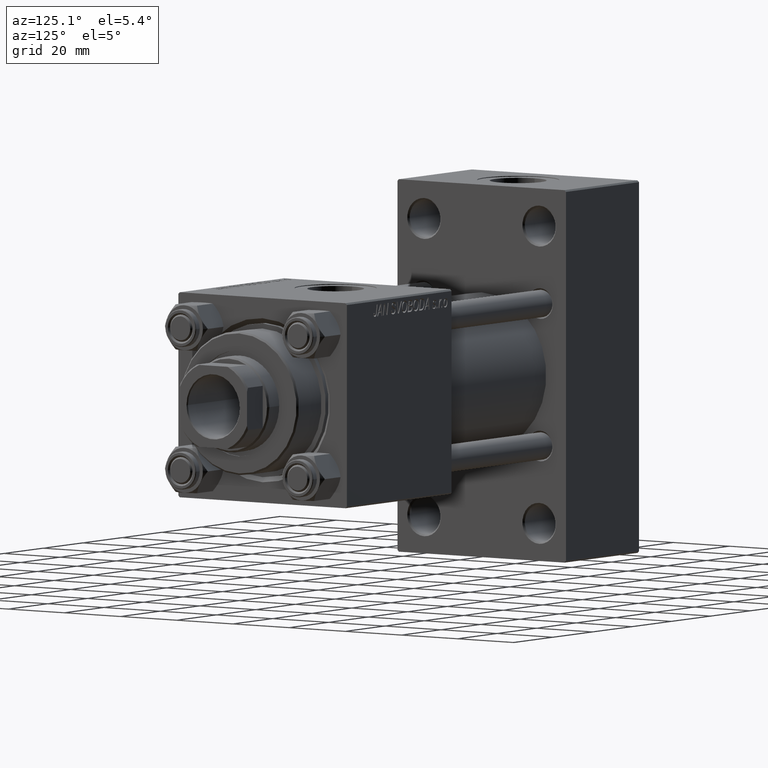
[diagram: clean part render]
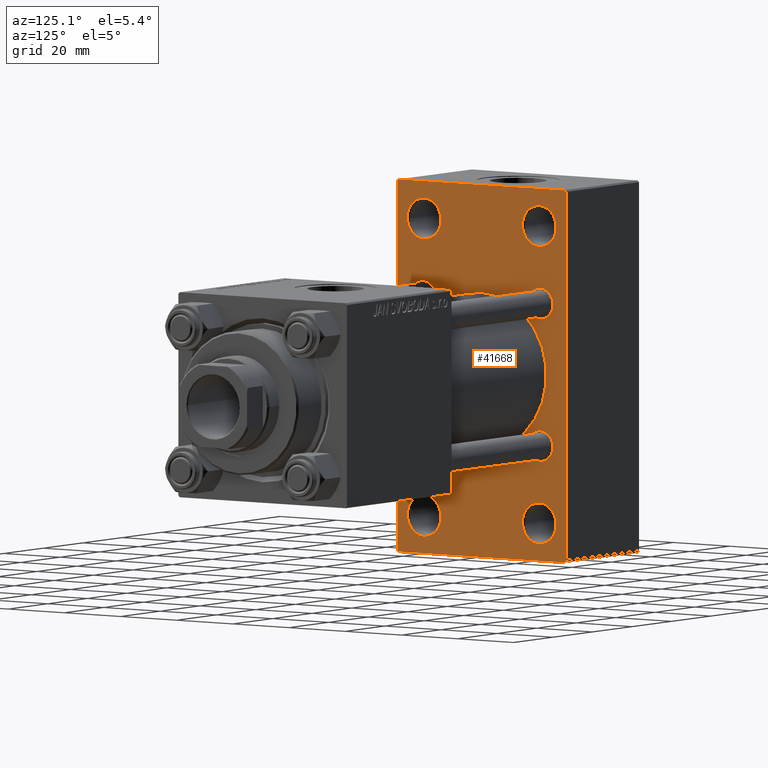
[diagram: same view with one face highlighted and labeled with its STEP entity id]
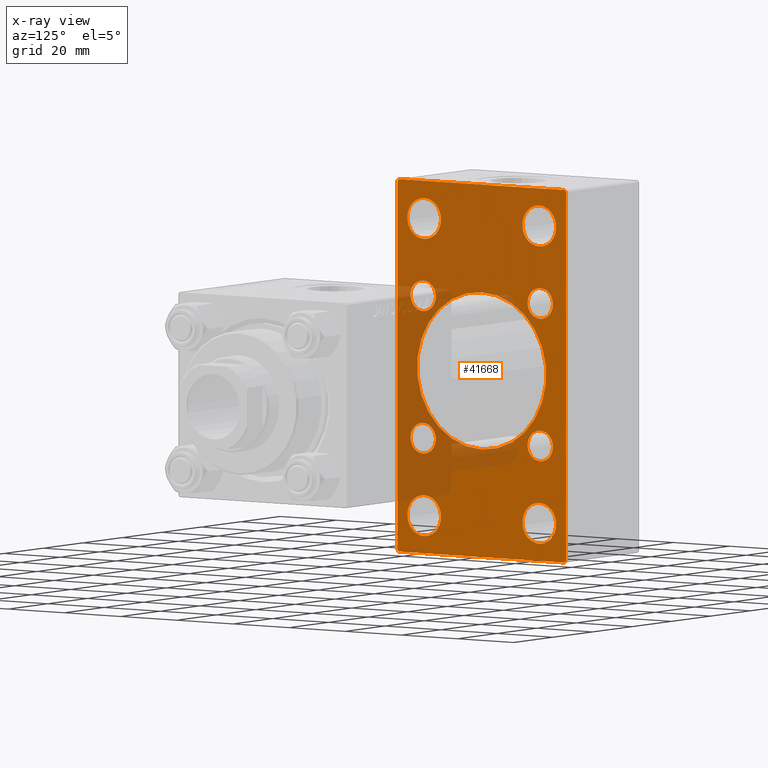
[diagram: x-ray of the same camera — body ghosted, the highlighted face saturated]
A machine part, auxiliary view. The second image highlights one B-rep face of the part: STEP entity #41668.
The next image is the same camera in x-ray: the body ghosted, the highlighted face saturated — about 21% of this face is hidden behind the body in this view.
In plain terms, the highlighted planar face has unit normal (-1, 0, 0).
Its self-contained STEP definition (entity closure, byte-faithful):
#43 = DIRECTION ( 'NONE',  ( 0.000000000000000000, 0.000000000000000000, 1.000000000000000000 ) ) ;
#134 = EDGE_CURVE ( 'NONE', #39156, #16753, #9668, .T. ) ;
#541 = ORIENTED_EDGE ( 'NONE', *, *, #25282, .T. ) ;
#651 = EDGE_CURVE ( 'NONE', #6863, #30029, #31698, .T. ) ;
#1218 = DIRECTION ( 'NONE',  ( -1.000000000000000000, 0.000000000000000000, -0.000000000000000000 ) ) ;
#1322 = AXIS2_PLACEMENT_3D ( 'NONE', #27855, #16225, #15965 ) ;
#2048 = DIRECTION ( 'NONE',  ( 1.000000000000000000, -0.000000000000000000, 0.000000000000000000 ) ) ;
#2339 = DIRECTION ( 'NONE',  ( 0.000000000000000000, 0.000000000000000000, 1.000000000000000000 ) ) ;
#2614 = VERTEX_POINT ( 'NONE', #11074 ) ;
#2760 = EDGE_CURVE ( 'NONE', #21542, #24947, #33390, .T. ) ;
#2991 = VECTOR ( 'NONE', #12744, 1000.000000000000000 ) ;
#3732 = DIRECTION ( 'NONE',  ( 1.000000000000000000, -0.000000000000000000, 0.000000000000000000 ) ) ;
#4068 = VERTEX_POINT ( 'NONE', #46247 ) ;
#4076 = CARTESIAN_POINT ( 'NONE',  ( 37.00000000000000000, -20.49999999999999645, -43.50000000000000000 ) ) ;
#4276 = LINE ( 'NONE', #15413, #16192 ) ;
#4313 = DIRECTION ( 'NONE',  ( -1.000000000000000000, 0.000000000000000000, -0.000000000000000000 ) ) ;
#4333 = CARTESIAN_POINT ( 'NONE',  ( 37.00000000000000000, -2.602085213965210642E-15, 23.00000000000000000 ) ) ;
#4842 = LINE ( 'NONE', #20287, #29113 ) ;
#5033 = CARTESIAN_POINT ( 'NONE',  ( 37.00000000000000000, 30.00000000000000355, -53.99999999999995737 ) ) ;
#5185 = VERTEX_POINT ( 'NONE', #33752 ) ;
#5348 = CIRCLE ( 'NONE', #24748, 4.499999999999976019 ) ;
#5470 = DIRECTION ( 'NONE',  ( -1.000000000000000000, 0.000000000000000000, -0.000000000000000000 ) ) ;
#5645 = EDGE_CURVE ( 'NONE', #43738, #13284, #44707, .T. ) ;
#5672 = FACE_BOUND ( 'NONE', #26037, .T. ) ;
#6171 = FACE_BOUND ( 'NONE', #21537, .T. ) ;
#6209 = DIRECTION ( 'NONE',  ( -1.000000000000000000, 0.000000000000000000, -0.000000000000000000 ) ) ;
#6443 = EDGE_CURVE ( 'NONE', #49490, #8200, #20536, .T. ) ;
#6726 = ORIENTED_EDGE ( 'NONE', *, *, #47180, .T. ) ;
#6863 = VERTEX_POINT ( 'NONE', #44920 ) ;
#6932 = VERTEX_POINT ( 'NONE', #19633 ) ;
#7073 = VECTOR ( 'NONE', #13567, 1000.000000000000000 ) ;
#7527 = CARTESIAN_POINT ( 'NONE',  ( 37.00000000000000000, -20.49999999999999645, 43.50000000000000000 ) ) ;
#7577 = DIRECTION ( 'NONE',  ( 0.000000000000000000, 0.000000000000000000, 1.000000000000000000 ) ) ;
#8200 = VERTEX_POINT ( 'NONE', #12971 ) ;
#8476 = EDGE_LOOP ( 'NONE', ( #22464, #33504 ) ) ;
#8569 = ORIENTED_EDGE ( 'NONE', *, *, #27541, .T. ) ;
#9086 = CARTESIAN_POINT ( 'NONE',  ( 37.00000000000000000, 20.50000000000000355, -49.50000000000000000 ) ) ;
#9105 = CARTESIAN_POINT ( 'NONE',  ( 37.00000000000000000, -20.84999999999999076, 16.35000000000002629 ) ) ;
#9106 = VERTEX_POINT ( 'NONE', #9086 ) ;
#9561 = CIRCLE ( 'NONE', #23301, 6.000000000000005329 ) ;
#9668 = LINE ( 'NONE', #32188, #22831 ) ;
#9960 = FACE_BOUND ( 'NONE', #30152, .T. ) ;
#10150 = CARTESIAN_POINT ( 'NONE',  ( 37.00000000000000000, -20.84999999999999076, 20.85000000000000497 ) ) ;
#10599 = AXIS2_PLACEMENT_3D ( 'NONE', #28016, #20917, #47954 ) ;
#10994 = CIRCLE ( 'NONE', #1322, 4.499999999999976019 ) ;
#11074 = CARTESIAN_POINT ( 'NONE',  ( 37.00000000000000000, -20.84999999999999076, -25.34999999999998010 ) ) ;
#11163 = EDGE_CURVE ( 'NONE', #24947, #21542, #19062, .T. ) ;
#11457 = DIRECTION ( 'NONE',  ( 0.000000000000000000, 0.000000000000000000, 1.000000000000000000 ) ) ;
#12229 = EDGE_LOOP ( 'NONE', ( #36735, #39964 ) ) ;
#12744 = DIRECTION ( 'NONE',  ( 0.000000000000000000, 0.000000000000000000, -1.000000000000000000 ) ) ;
#12971 = CARTESIAN_POINT ( 'NONE',  ( 37.00000000000000000, 20.50000000000000355, 49.50000000000000000 ) ) ;
#13087 = DIRECTION ( 'NONE',  ( 0.000000000000000000, 0.000000000000000000, 1.000000000000000000 ) ) ;
#13254 = FACE_BOUND ( 'NONE', #12229, .T. ) ;
#13284 = VERTEX_POINT ( 'NONE', #13618 ) ;
#13567 = DIRECTION ( 'NONE',  ( 0.000000000000000000, 0.000000000000000000, -1.000000000000000000 ) ) ;
#13618 = CARTESIAN_POINT ( 'NONE',  ( 37.00000000000000000, -20.49999999999999645, -49.50000000000000000 ) ) ;
#14235 = VECTOR ( 'NONE', #37527, 1000.000000000000114 ) ;
#14853 = DIRECTION ( 'NONE',  ( -1.000000000000000000, 0.000000000000000000, -0.000000000000000000 ) ) ;
#15183 = EDGE_CURVE ( 'NONE', #30029, #6863, #36146, .T. ) ;
#15270 = ORIENTED_EDGE ( 'NONE', *, *, #5645, .T. ) ;
#15413 = CARTESIAN_POINT ( 'NONE',  ( 37.00000000000000000, -29.49999999999998224, -54.50000000000000000 ) ) ;
#15542 = CARTESIAN_POINT ( 'NONE',  ( 37.00000000000000000, 30.00000000000000355, 54.50000000000001421 ) ) ;
#15723 = CARTESIAN_POINT ( 'NONE',  ( 37.00000000000000000, -29.99999999999999645, 54.00000000000002132 ) ) ;
#15965 = DIRECTION ( 'NONE',  ( 0.000000000000000000, 0.000000000000000000, 1.000000000000000000 ) ) ;
#16153 = EDGE_CURVE ( 'NONE', #29342, #6932, #5348, .T. ) ;
#16192 = VECTOR ( 'NONE', #31086, 1000.000000000000000 ) ;
#16225 = DIRECTION ( 'NONE',  ( -1.000000000000000000, 0.000000000000000000, -0.000000000000000000 ) ) ;
#16277 = EDGE_LOOP ( 'NONE', ( #24838, #21231 ) ) ;
#16506 = ORIENTED_EDGE ( 'NONE', *, *, #651, .T. ) ;
#16602 = CARTESIAN_POINT ( 'NONE',  ( 37.00000000000000000, -29.50000000000000711, 54.50000000000000711 ) ) ;
#16753 = VERTEX_POINT ( 'NONE', #31144 ) ;
#16825 = CARTESIAN_POINT ( 'NONE',  ( 37.00000000000000000, 30.00000000000000355, 54.50000000000001421 ) ) ;
#17613 = LINE ( 'NONE', #33039, #7073 ) ;
#17809 = FACE_BOUND ( 'NONE', #16277, .T. ) ;
#18057 = AXIS2_PLACEMENT_3D ( 'NONE', #42653, #3732, #42400 ) ;
#18243 = EDGE_CURVE ( 'NONE', #49618, #24234, #47374, .T. ) ;
#18849 = LINE ( 'NONE', #33750, #14235 ) ;
#18939 = EDGE_CURVE ( 'NONE', #35753, #31327, #17613, .T. ) ;
#19062 = CIRCLE ( 'NONE', #25515, 23.00000000000000000 ) ;
#19342 = AXIS2_PLACEMENT_3D ( 'NONE', #29549, #49023, #32848 ) ;
#19460 = AXIS2_PLACEMENT_3D ( 'NONE', #20173, #5470, #39610 ) ;
#19631 = EDGE_LOOP ( 'NONE', ( #27391, #6726 ) ) ;
#19633 = CARTESIAN_POINT ( 'NONE',  ( 37.00000000000000000, -20.84999999999999076, 25.34999999999998010 ) ) ;
#20003 = DIRECTION ( 'NONE',  ( 0.000000000000000000, 0.000000000000000000, 1.000000000000000000 ) ) ;
#20018 = CARTESIAN_POINT ( 'NONE',  ( 37.00000000000000000, 29.50000000000000355, 54.50000000000001421 ) ) ;
#20173 = CARTESIAN_POINT ( 'NONE',  ( 37.00000000000000000, -20.49999999999999645, -43.50000000000000000 ) ) ;
#20287 = CARTESIAN_POINT ( 'NONE',  ( 37.00000000000000000, 30.00000000000000355, -53.99999999999995737 ) ) ;
#20343 = CARTESIAN_POINT ( 'NONE',  ( 37.00000000000000000, 20.84999999999999787, -16.35000000000002274 ) ) ;
#20536 = CIRCLE ( 'NONE', #39061, 6.000000000000005329 ) ;
#20645 = ORIENTED_EDGE ( 'NONE', *, *, #35221, .T. ) ;
#20917 = DIRECTION ( 'NONE',  ( -1.000000000000000000, 0.000000000000000000, -0.000000000000000000 ) ) ;
#20930 = ORIENTED_EDGE ( 'NONE', *, *, #6443, .T. ) ;
#21105 = DIRECTION ( 'NONE',  ( -0.000000000000000000, 0.000000000000000000, 1.000000000000000000 ) ) ;
#21231 = ORIENTED_EDGE ( 'NONE', *, *, #30917, .T. ) ;
#21295 = DIRECTION ( 'NONE',  ( -1.000000000000000000, 0.000000000000000000, -0.000000000000000000 ) ) ;
#21351 = FACE_OUTER_BOUND ( 'NONE', #22658, .T. ) ;
#21380 = ORIENTED_EDGE ( 'NONE', *, *, #30438, .T. ) ;
#21537 = EDGE_LOOP ( 'NONE', ( #20930, #32734 ) ) ;
#21542 = VERTEX_POINT ( 'NONE', #46711 ) ;
#21643 = DIRECTION ( 'NONE',  ( 0.000000000000000000, 0.000000000000000000, 1.000000000000000000 ) ) ;
#21769 = CARTESIAN_POINT ( 'NONE',  ( 37.00000000000000000, 29.50000000000000355, 54.50000000000001421 ) ) ;
#22422 = VERTEX_POINT ( 'NONE', #23223 ) ;
#22464 = ORIENTED_EDGE ( 'NONE', *, *, #45169, .T. ) ;
#22658 = EDGE_LOOP ( 'NONE', ( #29833, #35474, #46158, #21380, #49051, #20645, #42729, #541 ) ) ;
#22831 = VECTOR ( 'NONE', #44805, 1000.000000000000000 ) ;
#22926 = AXIS2_PLACEMENT_3D ( 'NONE', #4076, #1218, #13087 ) ;
#23223 = CARTESIAN_POINT ( 'NONE',  ( 37.00000000000000000, -20.49999999999999645, 49.50000000000000000 ) ) ;
#23291 = CARTESIAN_POINT ( 'NONE',  ( 37.00000000000000000, 20.50000000000000355, -43.50000000000000000 ) ) ;
#23301 = AXIS2_PLACEMENT_3D ( 'NONE', #23291, #4313, #43 ) ;
#24122 = AXIS2_PLACEMENT_3D ( 'NONE', #30336, #42203, #7577 ) ;
#24168 = DIRECTION ( 'NONE',  ( 0.000000000000000000, -1.000000000000000000, -1.156482317317871478E-16 ) ) ;
#24234 = VERTEX_POINT ( 'NONE', #5033 ) ;
#24748 = AXIS2_PLACEMENT_3D ( 'NONE', #10150, #21295, #2339 ) ;
#24838 = ORIENTED_EDGE ( 'NONE', *, *, #16153, .T. ) ;
#24894 = PLANE ( 'NONE',  #40928 ) ;
#24947 = VERTEX_POINT ( 'NONE', #4333 ) ;
#25104 = CIRCLE ( 'NONE', #37217, 4.499999999999976019 ) ;
#25148 = CARTESIAN_POINT ( 'NONE',  ( 37.00000000000000000, 0.000000000000000000, 0.000000000000000000 ) ) ;
#25282 = EDGE_CURVE ( 'NONE', #31327, #16753, #4276, .T. ) ;
#25393 = FACE_BOUND ( 'NONE', #26500, .T. ) ;
#25515 = AXIS2_PLACEMENT_3D ( 'NONE', #28841, #2048, #28593 ) ;
#25659 = AXIS2_PLACEMENT_3D ( 'NONE', #49030, #29817, #45226 ) ;
#25748 = AXIS2_PLACEMENT_3D ( 'NONE', #46352, #31683, #48544 ) ;
#25936 = CIRCLE ( 'NONE', #10599, 6.000000000000005329 ) ;
#26037 = EDGE_LOOP ( 'NONE', ( #42489, #39105 ) ) ;
#26437 = DIRECTION ( 'NONE',  ( -0.000000000000000000, 0.7071067811865474617, 0.7071067811865474617 ) ) ;
#26500 = EDGE_LOOP ( 'NONE', ( #8569, #15270 ) ) ;
#26636 = CARTESIAN_POINT ( 'NONE',  ( 37.00000000000000000, 20.84999999999999787, 20.85000000000000142 ) ) ;
#26694 = EDGE_CURVE ( 'NONE', #39156, #24234, #4842, .T. ) ;
#27391 = ORIENTED_EDGE ( 'NONE', *, *, #44012, .T. ) ;
#27541 = EDGE_CURVE ( 'NONE', #13284, #43738, #41228, .T. ) ;
#27855 = CARTESIAN_POINT ( 'NONE',  ( 37.00000000000000000, -20.84999999999999076, -20.85000000000000497 ) ) ;
#28016 = CARTESIAN_POINT ( 'NONE',  ( 37.00000000000000000, 20.50000000000000355, 43.50000000000000000 ) ) ;
#28550 = EDGE_CURVE ( 'NONE', #8200, #49490, #25936, .T. ) ;
#28593 = DIRECTION ( 'NONE',  ( 0.000000000000000000, 0.000000000000000000, 1.000000000000000000 ) ) ;
#28841 = CARTESIAN_POINT ( 'NONE',  ( 37.00000000000000000, -2.602085213965210642E-15, 0.000000000000000000 ) ) ;
#29113 = VECTOR ( 'NONE', #26437, 1000.000000000000114 ) ;
#29151 = VERTEX_POINT ( 'NONE', #43054 ) ;
#29280 = AXIS2_PLACEMENT_3D ( 'NONE', #29774, #14853, #37587 ) ;
#29342 = VERTEX_POINT ( 'NONE', #9105 ) ;
#29360 = CARTESIAN_POINT ( 'NONE',  ( 37.00000000000000000, 30.00000000000000355, 54.00000000000001421 ) ) ;
#29432 = FACE_BOUND ( 'NONE', #19631, .T. ) ;
#29549 = CARTESIAN_POINT ( 'NONE',  ( 37.00000000000000000, 20.50000000000000355, -43.50000000000000000 ) ) ;
#29774 = CARTESIAN_POINT ( 'NONE',  ( 37.00000000000000000, 20.84999999999999787, -20.85000000000000142 ) ) ;
#29817 = DIRECTION ( 'NONE',  ( -1.000000000000000000, 0.000000000000000000, -0.000000000000000000 ) ) ;
#29833 = ORIENTED_EDGE ( 'NONE', *, *, #134, .F. ) ;
#29905 = AXIS2_PLACEMENT_3D ( 'NONE', #26636, #29926, #11457 ) ;
#29926 = DIRECTION ( 'NONE',  ( -1.000000000000000000, 0.000000000000000000, -0.000000000000000000 ) ) ;
#30029 = VERTEX_POINT ( 'NONE', #20343 ) ;
#30152 = EDGE_LOOP ( 'NONE', ( #32417, #49923 ) ) ;
#30336 = CARTESIAN_POINT ( 'NONE',  ( 37.00000000000000000, 20.84999999999999787, 20.85000000000000142 ) ) ;
#30421 = CIRCLE ( 'NONE', #36845, 6.000000000000005329 ) ;
#30438 = EDGE_CURVE ( 'NONE', #49618, #39065, #48317, .T. ) ;
#30884 = DIRECTION ( 'NONE',  ( -1.000000000000000000, 0.000000000000000000, -0.000000000000000000 ) ) ;
#30917 = EDGE_CURVE ( 'NONE', #6932, #29342, #25104, .T. ) ;
#31086 = DIRECTION ( 'NONE',  ( 0.000000000000000000, 0.7071067811865524577, -0.7071067811865426878 ) ) ;
#31123 = CARTESIAN_POINT ( 'NONE',  ( 37.00000000000000000, 20.50000000000000355, 43.50000000000000000 ) ) ;
#31144 = CARTESIAN_POINT ( 'NONE',  ( 37.00000000000000000, -29.49999999999998224, -54.50000000000000000 ) ) ;
#31200 = CIRCLE ( 'NONE', #35190, 6.000000000000005329 ) ;
#31327 = VERTEX_POINT ( 'NONE', #46513 ) ;
#31683 = DIRECTION ( 'NONE',  ( -1.000000000000000000, 0.000000000000000000, -0.000000000000000000 ) ) ;
#31698 = CIRCLE ( 'NONE', #29280, 4.499999999999976019 ) ;
#31764 = CARTESIAN_POINT ( 'NONE',  ( 37.00000000000000000, -20.84999999999999076, -16.35000000000002629 ) ) ;
#31797 = VERTEX_POINT ( 'NONE', #16602 ) ;
#31903 = CARTESIAN_POINT ( 'NONE',  ( 37.00000000000000000, 20.50000000000000355, 37.49999999999999289 ) ) ;
#32188 = CARTESIAN_POINT ( 'NONE',  ( 37.00000000000000000, 30.00000000000000355, -54.49999999999998579 ) ) ;
#32417 = ORIENTED_EDGE ( 'NONE', *, *, #11163, .F. ) ;
#32734 = ORIENTED_EDGE ( 'NONE', *, *, #28550, .T. ) ;
#32848 = DIRECTION ( 'NONE',  ( 0.000000000000000000, 0.000000000000000000, 1.000000000000000000 ) ) ;
#33039 = CARTESIAN_POINT ( 'NONE',  ( 37.00000000000000000, -29.99999999999999645, 54.50000000000000711 ) ) ;
#33168 = EDGE_LOOP ( 'NONE', ( #16506, #39562 ) ) ;
#33390 = CIRCLE ( 'NONE', #18057, 23.00000000000000000 ) ;
#33504 = ORIENTED_EDGE ( 'NONE', *, *, #35773, .T. ) ;
#33750 = CARTESIAN_POINT ( 'NONE',  ( 37.00000000000000000, -29.99999999999999645, 54.00000000000002132 ) ) ;
#33752 = CARTESIAN_POINT ( 'NONE',  ( 37.00000000000000000, 20.84999999999999787, 25.34999999999997655 ) ) ;
#35190 = AXIS2_PLACEMENT_3D ( 'NONE', #49118, #40747, #41260 ) ;
#35221 = EDGE_CURVE ( 'NONE', #31797, #35753, #18849, .T. ) ;
#35301 = DIRECTION ( 'NONE',  ( -1.000000000000000000, 0.000000000000000000, -0.000000000000000000 ) ) ;
#35474 = ORIENTED_EDGE ( 'NONE', *, *, #26694, .T. ) ;
#35753 = VERTEX_POINT ( 'NONE', #15723 ) ;
#35773 = EDGE_CURVE ( 'NONE', #40491, #2614, #10994, .T. ) ;
#36146 = CIRCLE ( 'NONE', #25659, 4.499999999999976019 ) ;
#36735 = ORIENTED_EDGE ( 'NONE', *, *, #38848, .T. ) ;
#36845 = AXIS2_PLACEMENT_3D ( 'NONE', #7527, #35301, #39823 ) ;
#37008 = FACE_BOUND ( 'NONE', #8476, .T. ) ;
#37055 = CIRCLE ( 'NONE', #19342, 6.000000000000005329 ) ;
#37217 = AXIS2_PLACEMENT_3D ( 'NONE', #40826, #6209, #21643 ) ;
#37527 = DIRECTION ( 'NONE',  ( -0.000000000000000000, -0.7071067811865474617, -0.7071067811865474617 ) ) ;
#37587 = DIRECTION ( 'NONE',  ( 0.000000000000000000, 0.000000000000000000, 1.000000000000000000 ) ) ;
#38240 = CARTESIAN_POINT ( 'NONE',  ( 37.00000000000000000, -20.49999999999999645, 37.49999999999999289 ) ) ;
#38848 = EDGE_CURVE ( 'NONE', #46754, #22422, #31200, .T. ) ;
#39061 = AXIS2_PLACEMENT_3D ( 'NONE', #31123, #30884, #20003 ) ;
#39065 = VERTEX_POINT ( 'NONE', #20018 ) ;
#39105 = ORIENTED_EDGE ( 'NONE', *, *, #49292, .T. ) ;
#39156 = VERTEX_POINT ( 'NONE', #45000 ) ;
#39562 = ORIENTED_EDGE ( 'NONE', *, *, #15183, .T. ) ;
#39610 = DIRECTION ( 'NONE',  ( 0.000000000000000000, 0.000000000000000000, 1.000000000000000000 ) ) ;
#39823 = DIRECTION ( 'NONE',  ( 0.000000000000000000, 0.000000000000000000, 1.000000000000000000 ) ) ;
#39964 = ORIENTED_EDGE ( 'NONE', *, *, #40397, .T. ) ;
#40062 = LINE ( 'NONE', #16825, #42706 ) ;
#40297 = FACE_BOUND ( 'NONE', #33168, .T. ) ;
#40397 = EDGE_CURVE ( 'NONE', #22422, #46754, #30421, .T. ) ;
#40491 = VERTEX_POINT ( 'NONE', #31764 ) ;
#40747 = DIRECTION ( 'NONE',  ( -1.000000000000000000, 0.000000000000000000, -0.000000000000000000 ) ) ;
#40826 = CARTESIAN_POINT ( 'NONE',  ( 37.00000000000000000, -20.84999999999999076, 20.85000000000000497 ) ) ;
#40928 = AXIS2_PLACEMENT_3D ( 'NONE', #25148, #44103, #21105 ) ;
#41228 = CIRCLE ( 'NONE', #19460, 6.000000000000005329 ) ;
#41260 = DIRECTION ( 'NONE',  ( 0.000000000000000000, 0.000000000000000000, 1.000000000000000000 ) ) ;
#41668 = ADVANCED_FACE ( 'NONE', ( #6171, #13254, #25393, #29432, #37008, #40297, #17809, #5672, #9960, #21351 ), #24894, .F. ) ;
#42203 = DIRECTION ( 'NONE',  ( -1.000000000000000000, 0.000000000000000000, -0.000000000000000000 ) ) ;
#42400 = DIRECTION ( 'NONE',  ( 0.000000000000000000, 0.000000000000000000, 1.000000000000000000 ) ) ;
#42489 = ORIENTED_EDGE ( 'NONE', *, *, #45274, .T. ) ;
#42653 = CARTESIAN_POINT ( 'NONE',  ( 37.00000000000000000, -2.602085213965210642E-15, 0.000000000000000000 ) ) ;
#42706 = VECTOR ( 'NONE', #24168, 1000.000000000000000 ) ;
#42729 = ORIENTED_EDGE ( 'NONE', *, *, #18939, .T. ) ;
#43054 = CARTESIAN_POINT ( 'NONE',  ( 37.00000000000000000, 20.50000000000000355, -37.49999999999999289 ) ) ;
#43738 = VERTEX_POINT ( 'NONE', #48168 ) ;
#44012 = EDGE_CURVE ( 'NONE', #9106, #29151, #9561, .T. ) ;
#44103 = DIRECTION ( 'NONE',  ( -1.000000000000000000, 0.000000000000000000, -0.000000000000000000 ) ) ;
#44707 = CIRCLE ( 'NONE', #22926, 6.000000000000005329 ) ;
#44766 = DIRECTION ( 'NONE',  ( 0.000000000000000000, -0.7071067811865474617, 0.7071067811865474617 ) ) ;
#44805 = DIRECTION ( 'NONE',  ( 0.000000000000000000, -1.000000000000000000, -2.312964634635742957E-16 ) ) ;
#44920 = CARTESIAN_POINT ( 'NONE',  ( 37.00000000000000000, 20.84999999999999787, -25.34999999999997655 ) ) ;
#45000 = CARTESIAN_POINT ( 'NONE',  ( 37.00000000000000000, 29.49999999999997513, -54.49999999999998579 ) ) ;
#45169 = EDGE_CURVE ( 'NONE', #2614, #40491, #47538, .T. ) ;
#45226 = DIRECTION ( 'NONE',  ( 0.000000000000000000, 0.000000000000000000, 1.000000000000000000 ) ) ;
#45274 = EDGE_CURVE ( 'NONE', #4068, #5185, #48336, .T. ) ;
#45734 = EDGE_CURVE ( 'NONE', #39065, #31797, #40062, .T. ) ;
#46158 = ORIENTED_EDGE ( 'NONE', *, *, #18243, .F. ) ;
#46247 = CARTESIAN_POINT ( 'NONE',  ( 37.00000000000000000, 20.84999999999999787, 16.35000000000002274 ) ) ;
#46352 = CARTESIAN_POINT ( 'NONE',  ( 37.00000000000000000, -20.84999999999999076, -20.85000000000000497 ) ) ;
#46513 = CARTESIAN_POINT ( 'NONE',  ( 37.00000000000000000, -29.99999999999999645, -53.99999999999996447 ) ) ;
#46711 = CARTESIAN_POINT ( 'NONE',  ( 37.00000000000000000, 2.146024240737012665E-16, -23.00000000000000000 ) ) ;
#46754 = VERTEX_POINT ( 'NONE', #38240 ) ;
#47180 = EDGE_CURVE ( 'NONE', #29151, #9106, #37055, .T. ) ;
#47374 = LINE ( 'NONE', #15542, #2991 ) ;
#47538 = CIRCLE ( 'NONE', #25748, 4.499999999999976019 ) ;
#47634 = CIRCLE ( 'NONE', #29905, 4.499999999999976019 ) ;
#47677 = VECTOR ( 'NONE', #44766, 1000.000000000000114 ) ;
#47954 = DIRECTION ( 'NONE',  ( 0.000000000000000000, 0.000000000000000000, 1.000000000000000000 ) ) ;
#48168 = CARTESIAN_POINT ( 'NONE',  ( 37.00000000000000000, -20.49999999999999645, -37.49999999999999289 ) ) ;
#48317 = LINE ( 'NONE', #21769, #47677 ) ;
#48336 = CIRCLE ( 'NONE', #24122, 4.499999999999976019 ) ;
#48544 = DIRECTION ( 'NONE',  ( 0.000000000000000000, 0.000000000000000000, 1.000000000000000000 ) ) ;
#49023 = DIRECTION ( 'NONE',  ( -1.000000000000000000, 0.000000000000000000, -0.000000000000000000 ) ) ;
#49030 = CARTESIAN_POINT ( 'NONE',  ( 37.00000000000000000, 20.84999999999999787, -20.85000000000000142 ) ) ;
#49051 = ORIENTED_EDGE ( 'NONE', *, *, #45734, .T. ) ;
#49118 = CARTESIAN_POINT ( 'NONE',  ( 37.00000000000000000, -20.49999999999999645, 43.50000000000000000 ) ) ;
#49292 = EDGE_CURVE ( 'NONE', #5185, #4068, #47634, .T. ) ;
#49490 = VERTEX_POINT ( 'NONE', #31903 ) ;
#49618 = VERTEX_POINT ( 'NONE', #29360 ) ;
#49923 = ORIENTED_EDGE ( 'NONE', *, *, #2760, .F. ) ;